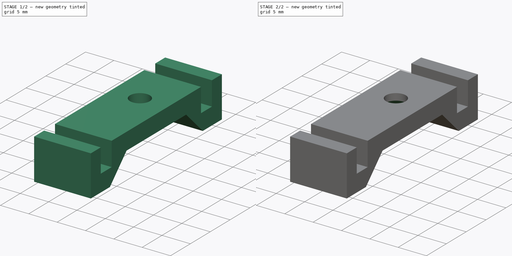
[diagram: build sequence overview — one tinted view per stage of 2, left to right]
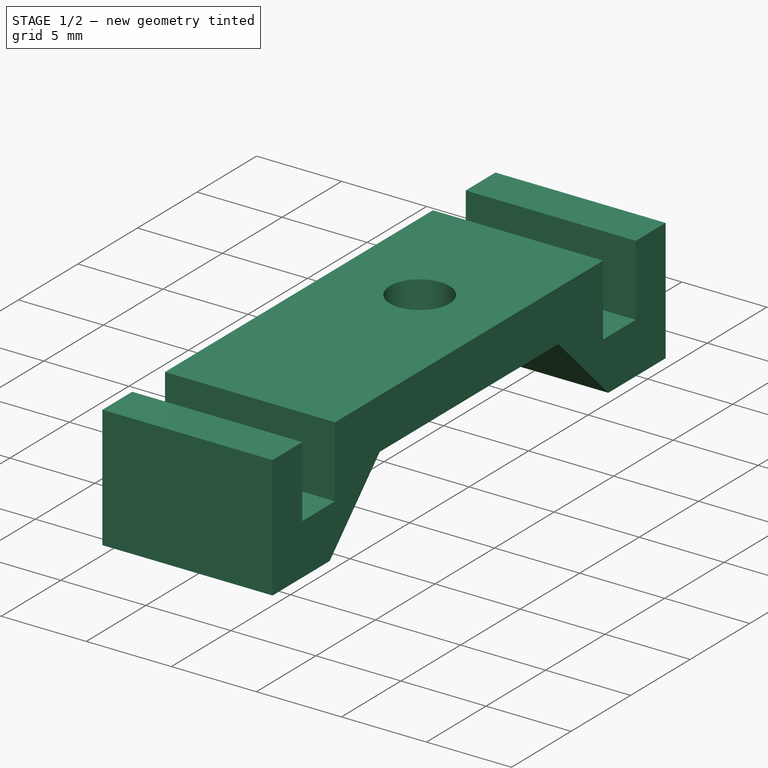
[diagram: stage 1 of 2 — iso view after this stage's code; geometry added in this stage tinted green]
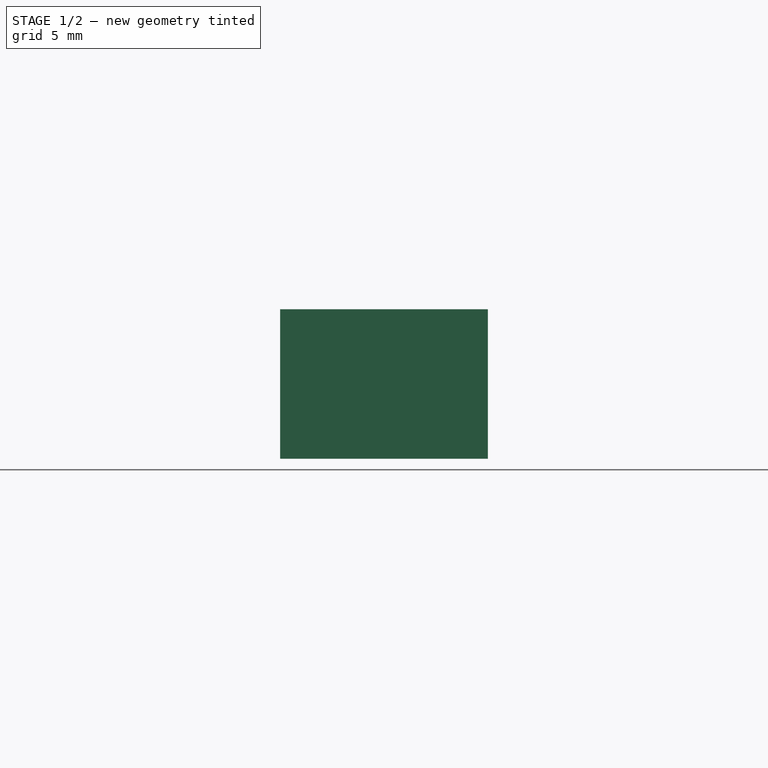
[diagram: stage 1 of 2 — front view after this stage's code; geometry added in this stage tinted green]
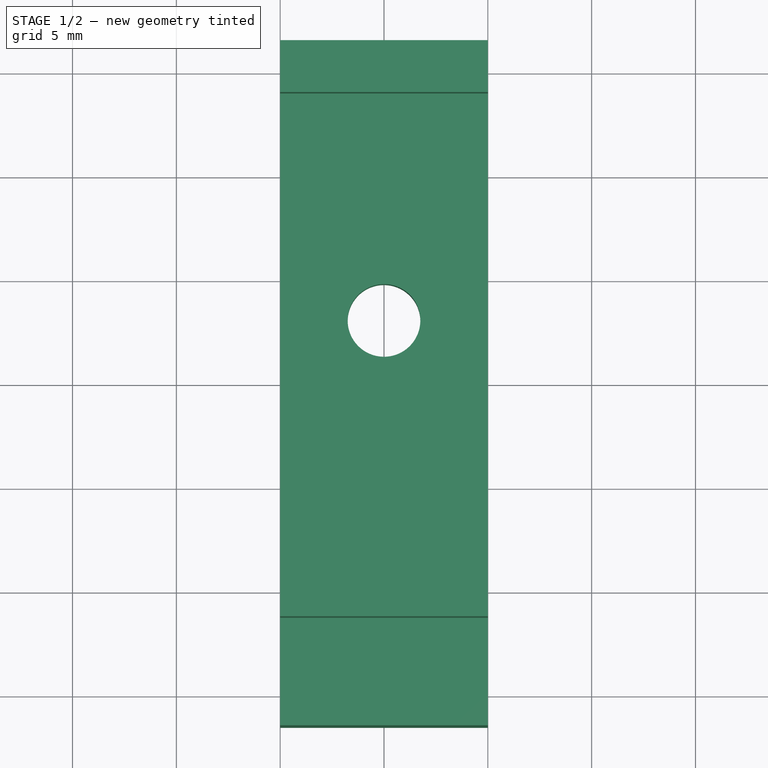
[diagram: stage 1 of 2 — top view after this stage's code; geometry added in this stage tinted green]
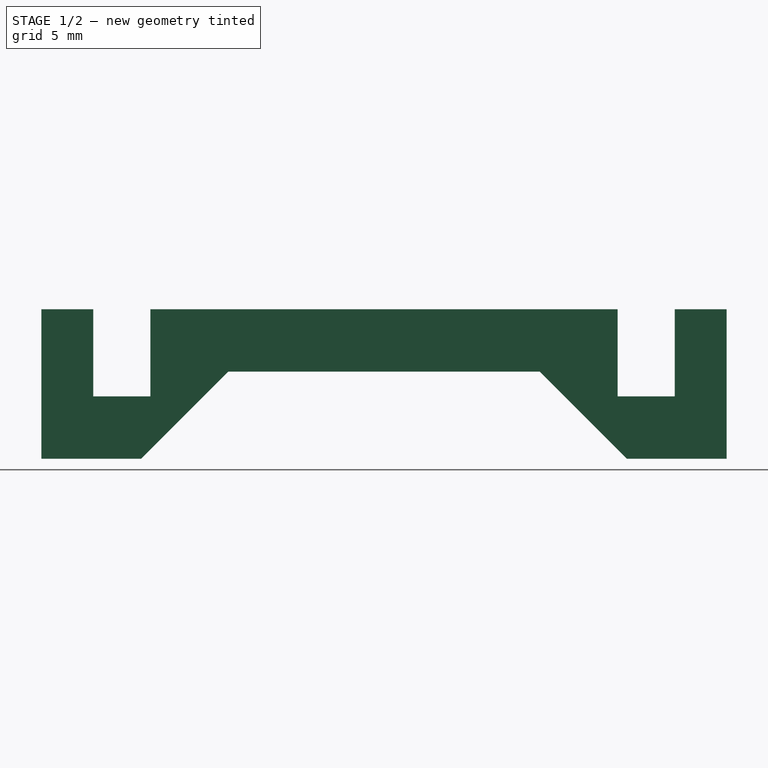
[diagram: stage 1 of 2 — right view after this stage's code; geometry added in this stage tinted green]
FCSTD DOCUMENT  (FreeCAD 0.21R33771 (Git))
Label: bride
License: All rights reserved
LicenseURL: http://en.wikipedia.org/wiki/All_rights_reserved
objects: Sketcher::SketchObject×2, Image::ImagePlane×1, PartDesign::Pad×1, PartDesign::Pocket×1, PartDesign::Chamfer×1, PartDesign::Body×1, App::Part×1
note: 9 computed .brp shape members not serialized (recipe doc carries the construction recipe); baked Part::Feature solids carry a one-line shape summary decoded from their .brp

FEATURE [Sketcher::SketchObject] Sketch
  FullyConstrained = true
  MapMode = 5
  Placement = pos=(0,0,0) rot=(0.57735,0.57735,0.57735;2.0944rad)
  Support = -> [YZ_Plane001]
  expr: Constraints[22] = 1.6 + 0.55 + 0.6
  sketch-geometry (16):
    g0: LineSegment StartX=-11.25 StartY=3 StartZ=0 EndX=11.25 EndY=3 EndZ=0
    g1: LineSegment StartX=16.5 StartY=3 StartZ=0 EndX=16.5 EndY=-4.196 EndZ=0
    g2: LineSegment StartX=-16.5 StartY=-4.196 StartZ=0 EndX=-16.5 EndY=3 EndZ=0
    g3: LineSegment StartX=-16.5 StartY=3 StartZ=0 EndX=-14 EndY=3 EndZ=0
    g4: LineSegment StartX=-14 StartY=3 StartZ=0 EndX=-14 EndY=-1.196 EndZ=0
    g5: LineSegment StartX=-14 StartY=-1.196 StartZ=0 EndX=-11.25 EndY=-1.196 EndZ=0
    g6: LineSegment StartX=-11.25 StartY=-1.196 StartZ=0 EndX=-11.25 EndY=3 EndZ=0
    g7: LineSegment StartX=11.25 StartY=3 StartZ=0 EndX=11.25 EndY=-1.196 EndZ=0
    g8: LineSegment StartX=11.25 StartY=-1.196 StartZ=0 EndX=14 EndY=-1.196 EndZ=0
    g9: LineSegment StartX=14 StartY=-1.196 StartZ=0 EndX=14 EndY=3 EndZ=0
    g10: LineSegment StartX=14 StartY=3 StartZ=0 EndX=16.5 EndY=3 EndZ=0
    g11: LineSegment StartX=-16.5 StartY=-4.196 StartZ=0 EndX=-11.696 EndY=-4.196 EndZ=0
    g12: LineSegment StartX=-11.696 StartY=-4.196 StartZ=0 EndX=-7.5 EndY=0 EndZ=0
    g13: LineSegment StartX=-7.5 StartY=0 StartZ=0 EndX=7.5 EndY=0 EndZ=0
    g14: LineSegment StartX=7.5 StartY=0 StartZ=0 EndX=11.696 EndY=-4.196 EndZ=0
    g15: LineSegment StartX=11.696 StartY=-4.196 StartZ=0 EndX=16.5 EndY=-4.196 EndZ=0
  constraints (45):
    c: Vertical(g1)
    c: Vertical(g2)
    c: Coincident(g2,g3)
    c: Coincident(g3,g4)
    c: Vertical(g4)
    c: Coincident(g4,g5)
    c: Horizontal(g5)
    c: Coincident(g5,g6)
    c: Vertical(g6)
    c: Coincident(g7,g8)
    c: Horizontal(g8)
    c: Coincident(g8,g9)
    c: Vertical(g9)
    c: Coincident(g9,g10)
    c: Coincident(g10,g1)
    c: Horizontal(g3)
    c: Horizontal(g10)
    c: Vertical(g7)
    c: Equal(g5,g8)
    c: Horizontal(g3,g6)
    c: Horizontal(g7,g9)
    c: Horizontal(g5,g7)
    c: DistanceX(g5,g5) = 2.75
    c: DistanceX(g0,g0) = 22.5
    c: Coincident(g0,g6)
    c: Coincident(g7,g0)
    c: DistanceY(g9,g9) = 4.196
    c: DistanceX(g2,g1) = 33
    c: Equal(g10,g3)
    c: Coincident(g2,g11)
    c: Horizontal(g11)
    c: Coincident(g11,g12)
    c: Coincident(g12,g13)
    c: Coincident(g13,g14)
    c: Coincident(g14,g15)
    c: Horizontal(g15)
    c: Coincident(g1,g15)
    c: DistanceY(g2,g4) = 3
    c: Symmetric(g12,g13,g-2)
    c: Symmetric(g0,g0,g-2)
    c: Symmetric(g11,g14,g-2)
    c: Angle(g12) = 0.785398
    c: DistanceX(g13,g13) = 15
    c: DistanceY(g12,g0) = 3
    c: PointOnObject(g-1,g13)
FEATURE [Image::ImagePlane] refImageBride
  Placement = pos=(0,0,0) rot=(0.358719,0.861767,0.358719;1.71902rad)
  XSize = 43.4537
  YSize = 31.8607
FEATURE [PartDesign::Pad] Pad
  Direction = (1,-2e-16,3e-16)
  Length = 10
  Length2 = 10
  Midplane = true
  Placement = pos=(0,0,0) rot=(1,1,1;2.0944rad)
  Profile = -> Sketch
  ReferenceAxis = -> Sketch [N_Axis]
  Type = 0
FEATURE [Sketcher::SketchObject] Sketch001
  FullyConstrained = true
  MapMode = 5
  Support = -> [XY_Plane001]
  sketch-geometry (1):
    g0: Circle CenterX=0 CenterY=3 CenterZ=0 NormalX=0 NormalY=0 NormalZ=1 AngleXU=0 Radius=1.75
  constraints (3):
    c: Diameter(g0) = 3.5
    c: PointOnObject(g0,g-2)
    c: DistanceY(g-1,g0) = 3
FEATURE [PartDesign::Pocket] Pocket
  BaseFeature = -> Pad
  Direction = (0,0,-1)
  Length = 5
  Length2 = 5
  Placement = pos=(0,0,0) rot=(1,1,1;2.0944rad)
  Profile = -> Sketch001
  ReferenceAxis = -> Sketch001 [N_Axis]
  Reversed = true
  Type = 1
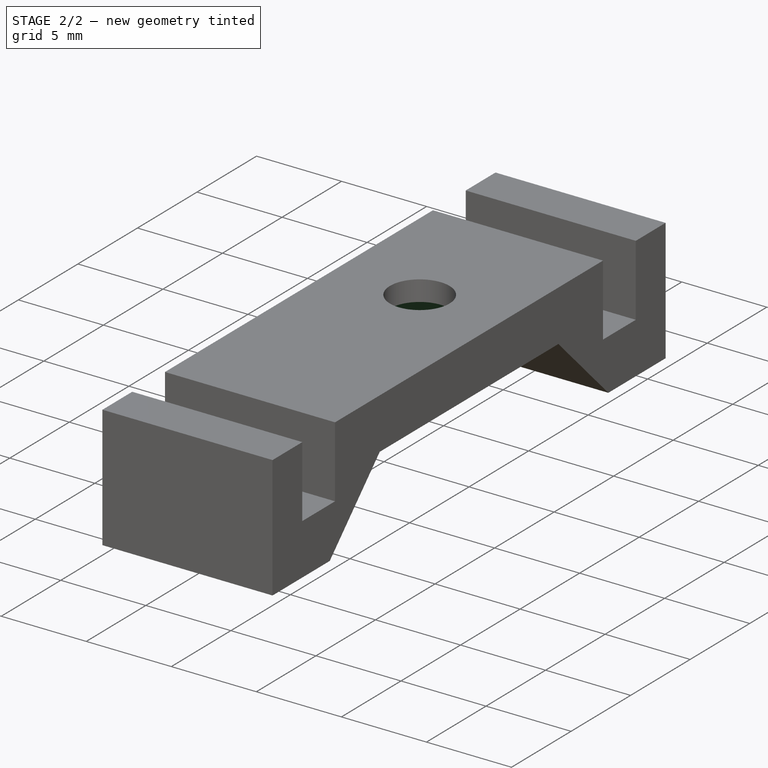
[diagram: stage 2 of 2 — iso view after this stage's code; geometry added in this stage tinted green]
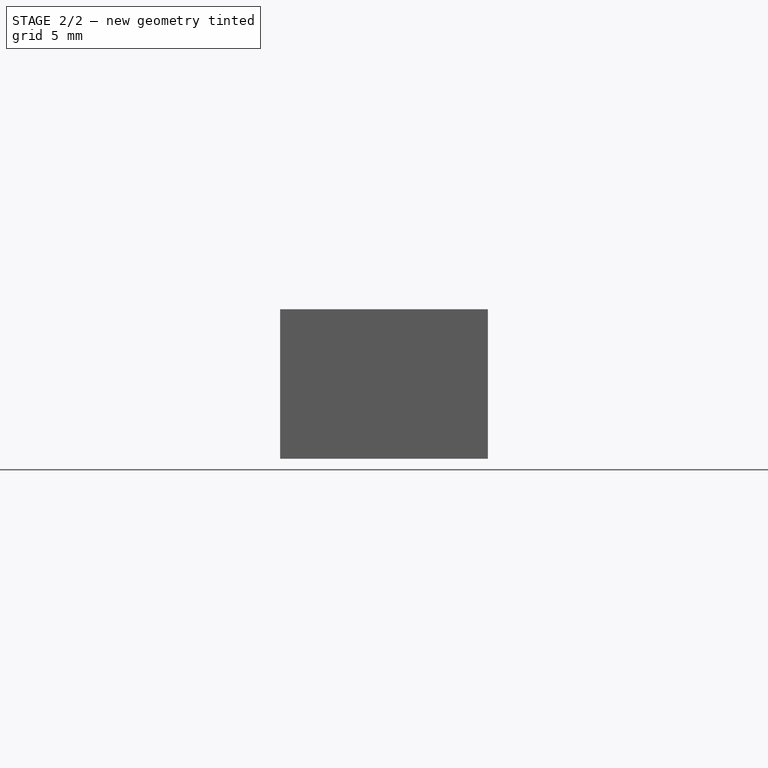
[diagram: stage 2 of 2 — front view after this stage's code; geometry added in this stage tinted green]
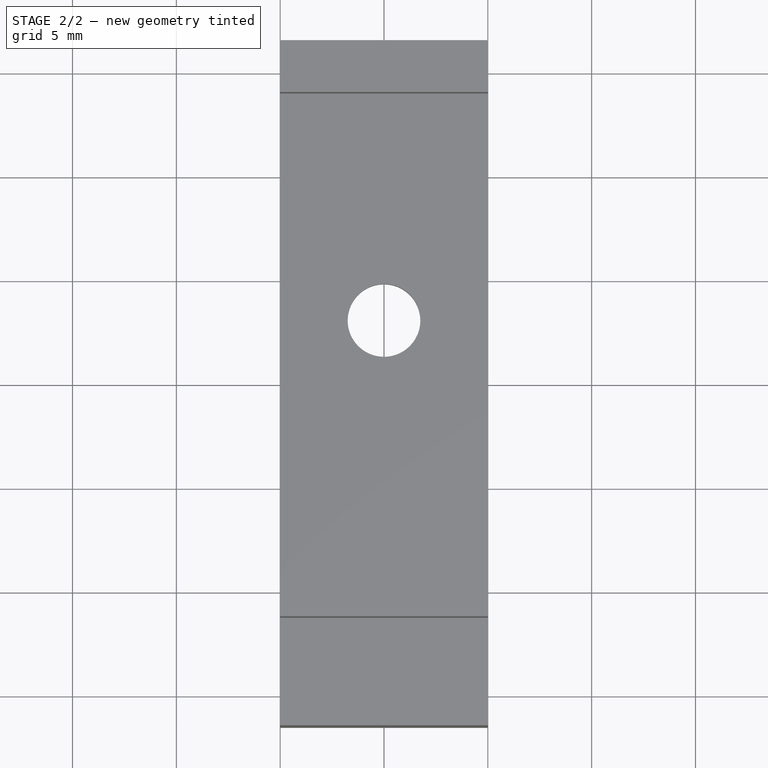
[diagram: stage 2 of 2 — top view after this stage's code; geometry added in this stage tinted green]
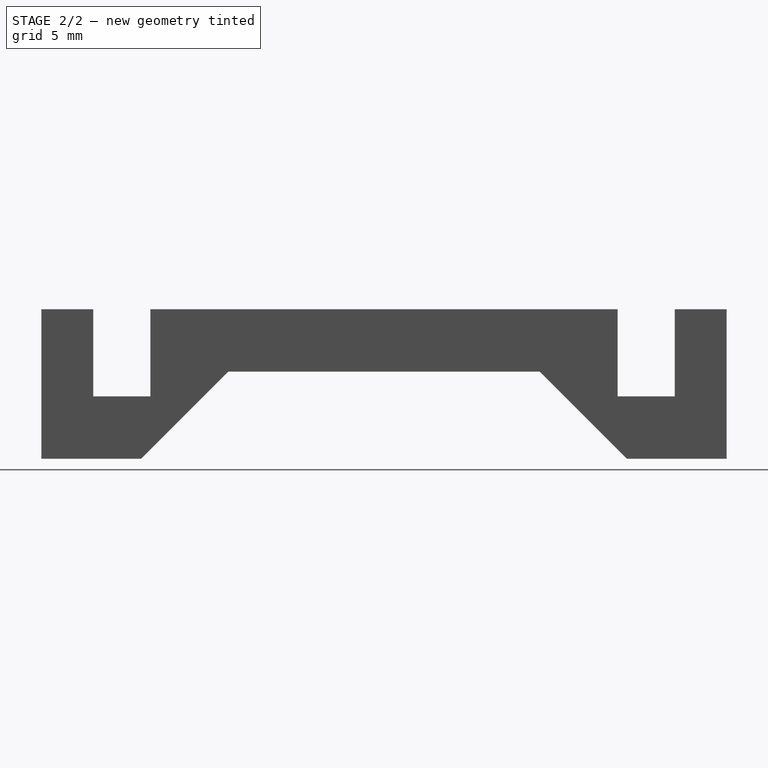
[diagram: stage 2 of 2 — right view after this stage's code; geometry added in this stage tinted green]
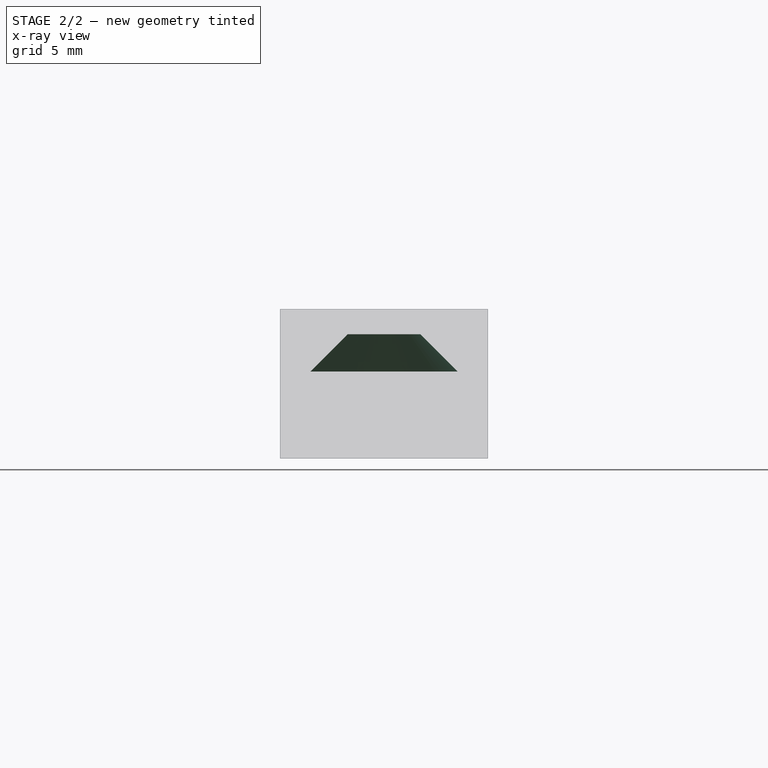
[diagram: stage 2 of 2 — x-ray composite at the front view; earlier geometry ghosted, this stage's added geometry solid]
FEATURE [PartDesign::Chamfer] Chamfer
  Angle = 45
  Base = -> Pocket [Edge50]
  BaseFeature = -> Pocket
  ChamferType = 0
  FlipDirection = false
  Placement = pos=(0,0,0) rot=(1,1,1;2.0944rad)
  Size = 1.8
  Size2 = 1
  SupportTransform = false
  UseAllEdges = false
FEATURE [PartDesign::Body] Body
  Group = -> [Sketch,Pad,Sketch001,Pocket,Chamfer]
  Origin = -> Origin001
  Tip = -> Chamfer
FEATURE [App::Part] Part
  Group = -> [Body]
  Origin = -> Origin
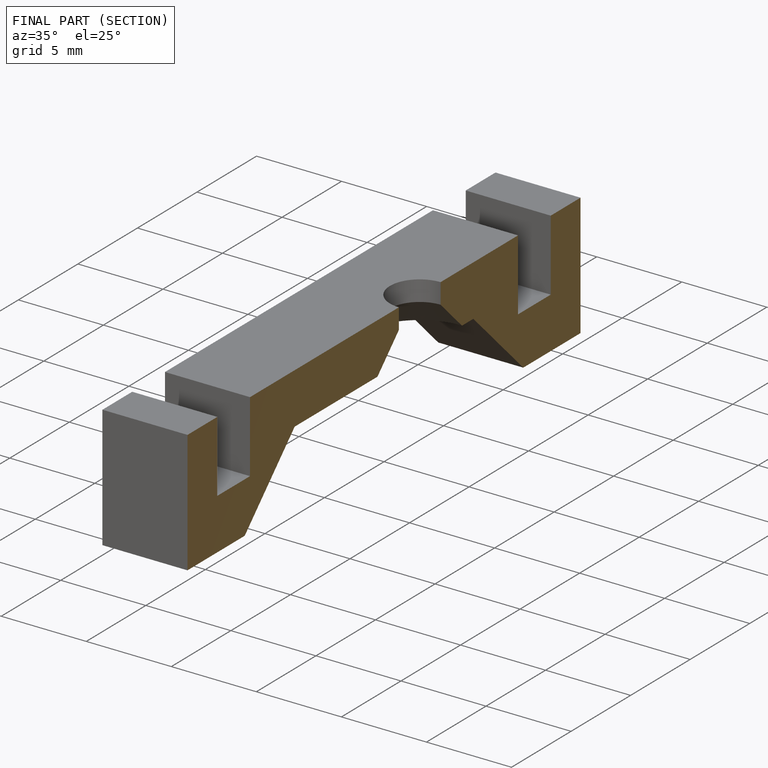
[diagram: finished part — half-section view (interior)]
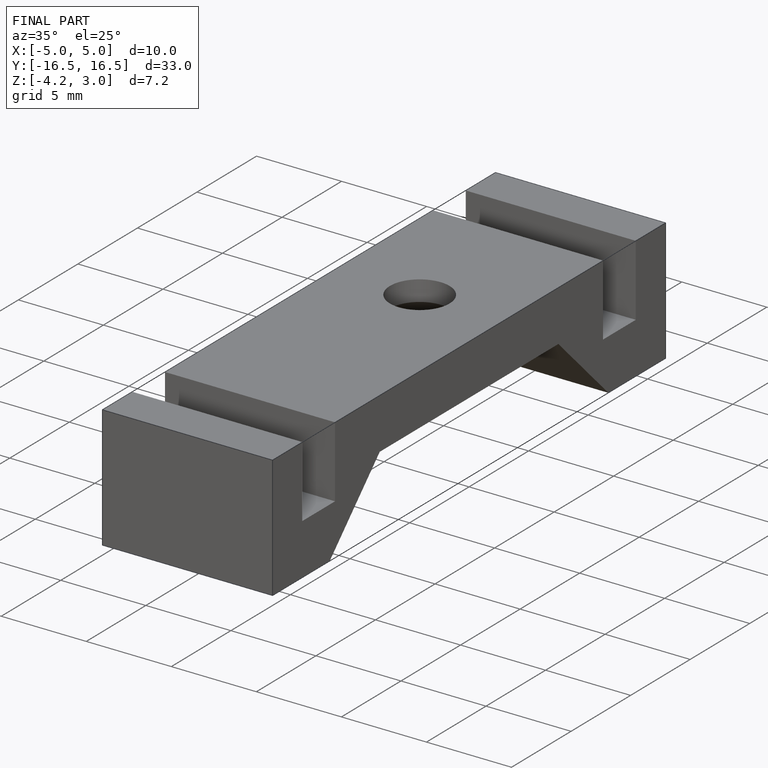
[diagram: finished part — iso view with bounding-box wireframe]
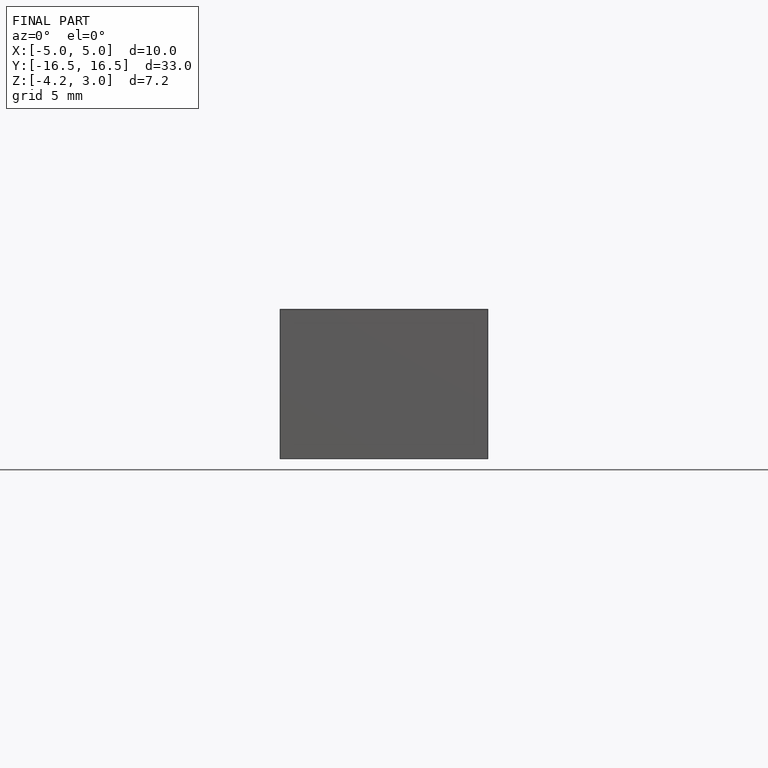
[diagram: finished part — front view with bounding-box wireframe]
